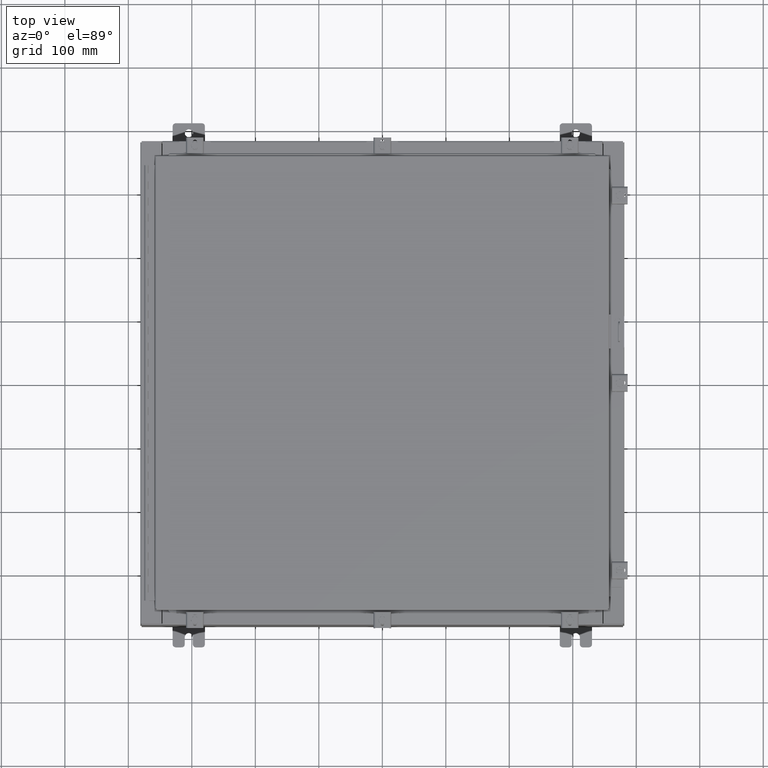
[diagram: clean part render]
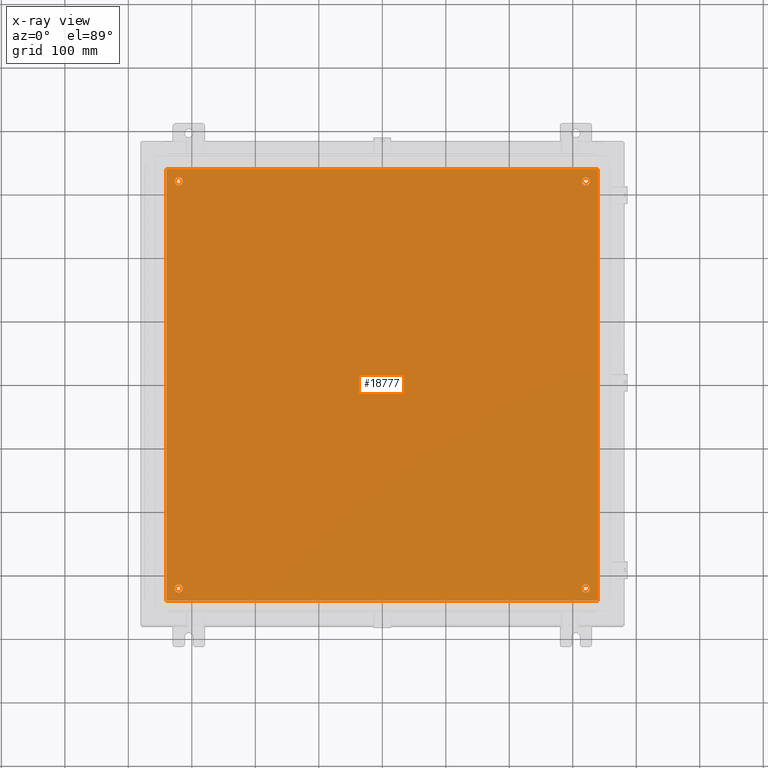
[diagram: x-ray — body ghosted, one internal face saturated and labeled with its STEP entity id]
A machine part, top view, then the same camera in x-ray: the body is ghosted and one INTERNAL B-rep face — a face not visible from any outside direction — is saturated and labeled: STEP entity #18777.
In plain terms, the highlighted planar face has unit normal (0, 0, -1).
Its self-contained STEP definition (entity closure, byte-faithful):
#155 = DIRECTION ( 'NONE',  ( -1.000000000000000000, 0.0000000000000000000, 0.0000000000000000000 ) ) ;
#200 = ORIENTED_EDGE ( 'NONE', *, *, #14012, .F. ) ;
#657 = DIRECTION ( 'NONE',  ( 0.0000000000000000000, -1.000000000000000000, 0.0000000000000000000 ) ) ;
#1158 = DIRECTION ( 'NONE',  ( 0.0000000000000000000, 1.000000000000000000, 0.0000000000000000000 ) ) ;
#1287 = DIRECTION ( 'NONE',  ( -0.0000000000000000000, -0.0000000000000000000, 1.000000000000000000 ) ) ;
#1491 = ORIENTED_EDGE ( 'NONE', *, *, #26298, .T. ) ;
#2407 = CIRCLE ( 'NONE', #29328, 0.2500000000000008900 ) ;
#3032 = VERTEX_POINT ( 'NONE', #22178 ) ;
#4168 = CARTESIAN_POINT ( 'NONE',  ( -12.37500000000000400, -12.62500000000000000, -0.1039999999999999800 ) ) ;
#4491 = DIRECTION ( 'NONE',  ( -0.0000000000000000000, -0.0000000000000000000, 1.000000000000000000 ) ) ;
#5158 = FACE_BOUND ( 'NONE', #21656, .T. ) ;
#5356 = VERTEX_POINT ( 'NONE', #18075 ) ;
#8070 = CARTESIAN_POINT ( 'NONE',  ( 0.0000000000000000000, 0.0000000000000000000, -0.1039999999999999800 ) ) ;
#8144 = VERTEX_POINT ( 'NONE', #16584 ) ;
#8972 = EDGE_CURVE ( 'NONE', #37556, #32464, #32287, .T. ) ;
#9479 = CARTESIAN_POINT ( 'NONE',  ( 12.62500000000000400, -12.62500000000000000, -0.1039999999999999800 ) ) ;
#9490 = AXIS2_PLACEMENT_3D ( 'NONE', #8070, #31894, #14069 ) ;
#10159 = CARTESIAN_POINT ( 'NONE',  ( -12.87500000000000500, -12.62500000000000000, -0.1039999999999999800 ) ) ;
#10202 = CARTESIAN_POINT ( 'NONE',  ( -13.50000000000000000, -13.38299999999999900, -0.1040000000000009100 ) ) ;
#10652 = CIRCLE ( 'NONE', #20579, 0.2500000000000008900 ) ;
#10828 = DIRECTION ( 'NONE',  ( -0.0000000000000000000, -0.0000000000000000000, 1.000000000000000000 ) ) ;
#11874 = EDGE_CURVE ( 'NONE', #26929, #8144, #15840, .T. ) ;
#11919 = CARTESIAN_POINT ( 'NONE',  ( -12.62500000000000400, 12.62500000000000000, -0.1039999999999999800 ) ) ;
#12485 = DIRECTION ( 'NONE',  ( -1.000000000000000000, 0.0000000000000000000, 0.0000000000000000000 ) ) ;
#12611 = ORIENTED_EDGE ( 'NONE', *, *, #35832, .T. ) ;
#12632 = EDGE_CURVE ( 'NONE', #17761, #35735, #29256, .T. ) ;
#12752 = VECTOR ( 'NONE', #25071, 39.37007874015748100 ) ;
#13072 = FACE_BOUND ( 'NONE', #37050, .T. ) ;
#13627 = VECTOR ( 'NONE', #1158, 39.37007874015748100 ) ;
#13836 = LINE ( 'NONE', #31697, #28741 ) ;
#13887 = ORIENTED_EDGE ( 'NONE', *, *, #33724, .F. ) ;
#13895 = AXIS2_PLACEMENT_3D ( 'NONE', #19128, #1287, #22157 ) ;
#13935 = PLANE ( 'NONE',  #9490 ) ;
#14012 = EDGE_CURVE ( 'NONE', #5356, #17761, #13836, .T. ) ;
#14069 = DIRECTION ( 'NONE',  ( -1.000000000000000000, 0.0000000000000000000, -0.0000000000000000000 ) ) ;
#14386 = ORIENTED_EDGE ( 'NONE', *, *, #18204, .T. ) ;
#14407 = AXIS2_PLACEMENT_3D ( 'NONE', #33322, #15510, #36307 ) ;
#14934 = DIRECTION ( 'NONE',  ( -1.000000000000000000, 0.0000000000000000000, 0.0000000000000000000 ) ) ;
#14970 = ORIENTED_EDGE ( 'NONE', *, *, #20866, .T. ) ;
#15078 = DIRECTION ( 'NONE',  ( -0.0000000000000000000, -0.0000000000000000000, 1.000000000000000000 ) ) ;
#15146 = EDGE_CURVE ( 'NONE', #23100, #38516, #30997, .T. ) ;
#15461 = CARTESIAN_POINT ( 'NONE',  ( 12.37500000000000400, 12.62500000000000000, -0.1039999999999999800 ) ) ;
#15510 = DIRECTION ( 'NONE',  ( -0.0000000000000000000, -0.0000000000000000000, 1.000000000000000000 ) ) ;
#15748 = ORIENTED_EDGE ( 'NONE', *, *, #8972, .T. ) ;
#15840 = CIRCLE ( 'NONE', #26283, 0.2500000000000008900 ) ;
#16584 = CARTESIAN_POINT ( 'NONE',  ( -12.87500000000000500, 12.62500000000000000, -0.1039999999999999800 ) ) ;
#16718 = CARTESIAN_POINT ( 'NONE',  ( -12.37500000000000400, 12.62500000000000000, -0.1039999999999999800 ) ) ;
#16815 = EDGE_CURVE ( 'NONE', #28396, #5356, #22513, .T. ) ;
#17761 = VERTEX_POINT ( 'NONE', #38333 ) ;
#18015 = DIRECTION ( 'NONE',  ( -0.0000000000000000000, -0.0000000000000000000, 1.000000000000000000 ) ) ;
#18075 = CARTESIAN_POINT ( 'NONE',  ( 13.38299999999999900, 13.38299999999999700, -0.1040000000000009100 ) ) ;
#18204 = EDGE_CURVE ( 'NONE', #3032, #33579, #31756, .T. ) ;
#18777 = ADVANCED_FACE ( 'NONE', ( #5158, #21969, #28910, #13072, #35896 ), #13935, .T. ) ;
#19128 = CARTESIAN_POINT ( 'NONE',  ( 12.62500000000000400, -12.62500000000000000, -0.1039999999999999800 ) ) ;
#19428 = ORIENTED_EDGE ( 'NONE', *, *, #16815, .F. ) ;
#19846 = DIRECTION ( 'NONE',  ( -1.000000000000000000, -0.0000000000000000000, -0.0000000000000000000 ) ) ;
#20579 = AXIS2_PLACEMENT_3D ( 'NONE', #35843, #18015, #155 ) ;
#20866 = EDGE_CURVE ( 'NONE', #38516, #23100, #22424, .T. ) ;
#20900 = CARTESIAN_POINT ( 'NONE',  ( 13.38299999999999900, -13.38299999999999700, -0.1040000000000009100 ) ) ;
#20975 = CARTESIAN_POINT ( 'NONE',  ( -13.38299999999999900, -13.38299999999999900, -0.1040000000000009100 ) ) ;
#21527 = CARTESIAN_POINT ( 'NONE',  ( -13.38299999999999900, 13.38299999999999700, -0.1040000000000009100 ) ) ;
#21656 = EDGE_LOOP ( 'NONE', ( #15748, #12611 ) ) ;
#21969 = FACE_BOUND ( 'NONE', #35228, .T. ) ;
#21973 = EDGE_CURVE ( 'NONE', #8144, #26929, #10652, .T. ) ;
#22143 = ORIENTED_EDGE ( 'NONE', *, *, #11874, .T. ) ;
#22157 = DIRECTION ( 'NONE',  ( -1.000000000000000000, 0.0000000000000000000, 0.0000000000000000000 ) ) ;
#22178 = CARTESIAN_POINT ( 'NONE',  ( 12.87500000000000500, 12.62500000000000000, -0.1039999999999999800 ) ) ;
#22365 = CARTESIAN_POINT ( 'NONE',  ( 12.62500000000000400, 12.62500000000000000, -0.1039999999999999800 ) ) ;
#22424 = CIRCLE ( 'NONE', #29511, 0.2500000000000008900 ) ;
#22513 = LINE ( 'NONE', #30859, #13627 ) ;
#23100 = VERTEX_POINT ( 'NONE', #35077 ) ;
#24974 = EDGE_LOOP ( 'NONE', ( #13887, #33403, #200, #19428 ) ) ;
#25071 = DIRECTION ( 'NONE',  ( 1.000000000000000000, -0.0000000000000000000, -0.0000000000000000000 ) ) ;
#25352 = DIRECTION ( 'NONE',  ( -1.000000000000000000, 0.0000000000000000000, 0.0000000000000000000 ) ) ;
#25497 = EDGE_LOOP ( 'NONE', ( #14386, #1491 ) ) ;
#26283 = AXIS2_PLACEMENT_3D ( 'NONE', #11919, #32761, #14934 ) ;
#26298 = EDGE_CURVE ( 'NONE', #33579, #3032, #2407, .T. ) ;
#26929 = VERTEX_POINT ( 'NONE', #16718 ) ;
#28396 = VERTEX_POINT ( 'NONE', #20900 ) ;
#28583 = LINE ( 'NONE', #10202, #12752 ) ;
#28667 = CARTESIAN_POINT ( 'NONE',  ( 12.62500000000000400, 12.62500000000000000, -0.1039999999999999800 ) ) ;
#28741 = VECTOR ( 'NONE', #19846, 39.37007874015748100 ) ;
#28910 = FACE_BOUND ( 'NONE', #25497, .T. ) ;
#29256 = LINE ( 'NONE', #21527, #38104 ) ;
#29328 = AXIS2_PLACEMENT_3D ( 'NONE', #22365, #4491, #25352 ) ;
#29511 = AXIS2_PLACEMENT_3D ( 'NONE', #9479, #30320, #12485 ) ;
#29743 = CARTESIAN_POINT ( 'NONE',  ( 12.37500000000000400, -12.62500000000000000, -0.1039999999999999800 ) ) ;
#30320 = DIRECTION ( 'NONE',  ( -0.0000000000000000000, -0.0000000000000000000, 1.000000000000000000 ) ) ;
#30859 = CARTESIAN_POINT ( 'NONE',  ( 13.38299999999999900, -13.38299999999999700, -0.1040000000000009100 ) ) ;
#30997 = CIRCLE ( 'NONE', #13895, 0.2500000000000008900 ) ;
#31419 = ORIENTED_EDGE ( 'NONE', *, *, #15146, .T. ) ;
#31671 = DIRECTION ( 'NONE',  ( -1.000000000000000000, 0.0000000000000000000, 0.0000000000000000000 ) ) ;
#31697 = CARTESIAN_POINT ( 'NONE',  ( 13.50000000000000000, 13.38299999999999900, -0.1040000000000009100 ) ) ;
#31756 = CIRCLE ( 'NONE', #33698, 0.2500000000000008900 ) ;
#31894 = DIRECTION ( 'NONE',  ( 0.0000000000000000000, 0.0000000000000000000, -1.000000000000000000 ) ) ;
#32016 = ORIENTED_EDGE ( 'NONE', *, *, #21973, .T. ) ;
#32287 = CIRCLE ( 'NONE', #36413, 0.2500000000000008900 ) ;
#32464 = VERTEX_POINT ( 'NONE', #10159 ) ;
#32761 = DIRECTION ( 'NONE',  ( -0.0000000000000000000, -0.0000000000000000000, 1.000000000000000000 ) ) ;
#32909 = CARTESIAN_POINT ( 'NONE',  ( -12.62500000000000400, -12.62500000000000000, -0.1039999999999999800 ) ) ;
#33322 = CARTESIAN_POINT ( 'NONE',  ( -12.62500000000000400, -12.62500000000000000, -0.1039999999999999800 ) ) ;
#33403 = ORIENTED_EDGE ( 'NONE', *, *, #12632, .F. ) ;
#33579 = VERTEX_POINT ( 'NONE', #15461 ) ;
#33698 = AXIS2_PLACEMENT_3D ( 'NONE', #28667, #10828, #31671 ) ;
#33724 = EDGE_CURVE ( 'NONE', #35735, #28396, #28583, .T. ) ;
#35077 = CARTESIAN_POINT ( 'NONE',  ( 12.87500000000000500, -12.62500000000000000, -0.1039999999999999800 ) ) ;
#35228 = EDGE_LOOP ( 'NONE', ( #31419, #14970 ) ) ;
#35484 = CIRCLE ( 'NONE', #14407, 0.2500000000000008900 ) ;
#35735 = VERTEX_POINT ( 'NONE', #20975 ) ;
#35832 = EDGE_CURVE ( 'NONE', #32464, #37556, #35484, .T. ) ;
#35843 = CARTESIAN_POINT ( 'NONE',  ( -12.62500000000000400, 12.62500000000000000, -0.1039999999999999800 ) ) ;
#35896 = FACE_OUTER_BOUND ( 'NONE', #24974, .T. ) ;
#35900 = DIRECTION ( 'NONE',  ( -1.000000000000000000, 0.0000000000000000000, 0.0000000000000000000 ) ) ;
#36307 = DIRECTION ( 'NONE',  ( -1.000000000000000000, 0.0000000000000000000, 0.0000000000000000000 ) ) ;
#36413 = AXIS2_PLACEMENT_3D ( 'NONE', #32909, #15078, #35900 ) ;
#37050 = EDGE_LOOP ( 'NONE', ( #22143, #32016 ) ) ;
#37556 = VERTEX_POINT ( 'NONE', #4168 ) ;
#38104 = VECTOR ( 'NONE', #657, 39.37007874015748100 ) ;
#38333 = CARTESIAN_POINT ( 'NONE',  ( -13.38299999999999900, 13.38299999999999700, -0.1040000000000009100 ) ) ;
#38516 = VERTEX_POINT ( 'NONE', #29743 ) ;